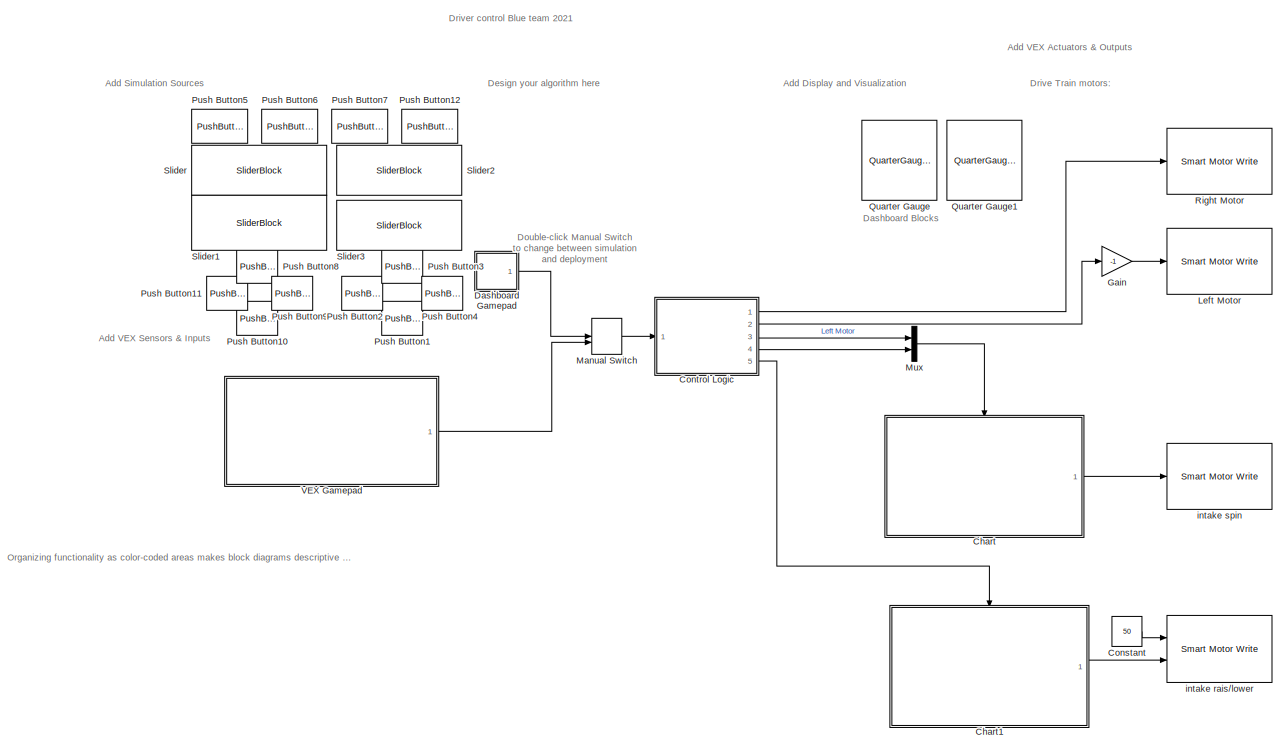
[diagram: root canvas - part 1/2, most of the canvas]
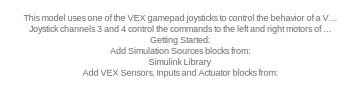
[diagram: root canvas - part 2/2, top left region]
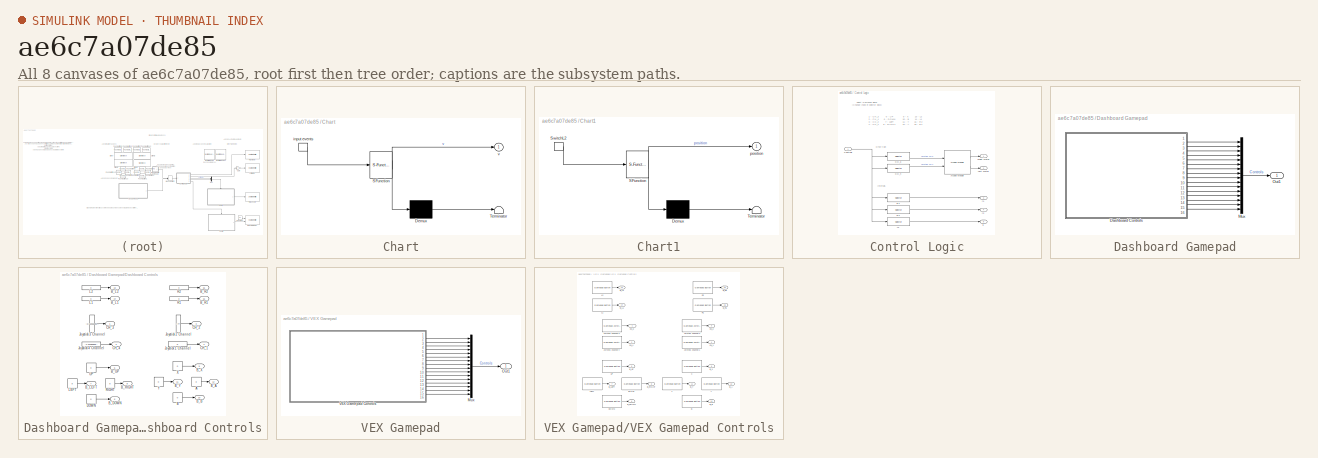
[diagram: thumbnail index - all 8 canvases of the model, root first then tree order]
MODEL slx_ae6c7a07de85
KIND model
CONFIG AbsTol = auto
CONFIG EnableMultiTasking = on
CONFIG FixedStep = auto
CONFIG MaxStep = auto
CONFIG MinStep = auto
CONFIG RelTol = 1e-3
CONFIG SampleTimeConstraint = Unconstrained
CONFIG SolverName = ode3
CONFIG StartTime = 0.0
CONFIG StopTime = inf
BLOCK [SubSystem] Chart
  ErrorFcn = Stateflow.Translate.translate
  PermitHierarchicalResolution = ExplicitOnly
  Ports = [0, 1, 0, 1]
  RequestExecContextInheritance = off
  SFBlockType = Chart
  TreatAsAtomicUnit = on
BLOCK [Demux] Chart/ Demux 
  Outputs = 1
  Ports = [1, 1]
BLOCK [S-Function] Chart/ SFunction 
  EnableBusSupport = on
  FunctionName = sf_sfun
  PortCounts = [1 2]
  Ports = [1, 2]
  SFcnIsStateOwnerBlock = off
  SFunctionDeploymentMode = off
  Tag = Stateflow S-Function 3
BLOCK [Terminator] Chart/ Terminator 
BLOCK [TriggerPort] Chart/input events
  Ports = [0, 1]
  ShowOutputPort = on
  StatesWhenEnabling = held
  VariantControl = (inherit)
BLOCK [Outport] Chart/v
BLOCK [SubSystem] Chart1
  ErrorFcn = Stateflow.Translate.translate
  PermitHierarchicalResolution = ExplicitOnly
  Ports = [0, 1, 0, 1]
  RequestExecContextInheritance = off
  SFBlockType = Chart
  TreatAsAtomicUnit = on
BLOCK [Demux] Chart1/ Demux 
  Outputs = 1
  Ports = [1, 1]
BLOCK [S-Function] Chart1/ SFunction 
  EnableBusSupport = on
  FunctionName = sf_sfun
  PortCounts = [1 2]
  Ports = [1, 2]
  SFcnIsStateOwnerBlock = off
  SFunctionDeploymentMode = off
  Tag = Stateflow S-Function 1
BLOCK [Terminator] Chart1/ Terminator 
BLOCK [TriggerPort] Chart1/SwitchL2
  Ports = [0, 1]
  ShowOutputPort = on
  StatesWhenEnabling = held
  VariantControl = (inherit)
BLOCK [Outport] Chart1/position
BLOCK [Constant] Constant
  Value = 50
BLOCK [SubSystem] Control Logic
  Ports = [1, 5]
  RequestExecContextInheritance = off
BLOCK [Reference] Control Logic/Arcade Module  REF=vexcommonlib/Arcade Module
  Ports = [2, 2]
  SourceBlock = vexcommonlib/Arcade Module
  SourceProductBaseCode = EC_VEX_MICRO,VEXV5
  SourceType = Arcade-2 Motors Module
BLOCK [Selector] Control Logic/CH_3
  IndexOptions = Index vector (dialog)
  Indices = 1
  InputPortWidth = 16
  OutputSizes = 1
  Ports = [1, 1]
BLOCK [Selector] Control Logic/CH_4
  IndexOptions = Index vector (dialog)
  Indices = 2
  InputPortWidth = 16
  OutputSizes = 1
  Ports = [1, 1]
BLOCK [Inport] Control Logic/Controls
BLOCK [Selector] Control Logic/L1
  IndexOptions = Index vector (dialog)
  Indices = 14
  InputPortWidth = 16
  OutputSizes = 1
  Ports = [1, 1]
BLOCK [Outport] Control Logic/Left Motor
  Port = 2
  VectorParamsAs1DForOutWhenUnconnected = off
BLOCK [Selector] Control Logic/R1
  IndexOptions = Index vector (dialog)
  Indices = 16
  InputPortWidth = 16
  OutputSizes = 1
  Ports = [1, 1]
BLOCK [Selector] Control Logic/R2
  IndexOptions = Index vector (dialog)
  Indices = 15
  InputPortWidth = 16
  OutputSizes = 1
  Ports = [1, 1]
BLOCK [Outport] Control Logic/Right Motor
  VectorParamsAs1DForOutWhenUnconnected = off
BLOCK [Outport] Control Logic/l1
  Port = 5
  VectorParamsAs1DForOutWhenUnconnected = off
BLOCK [Outport] Control Logic/r1
  Port = 3
  VectorParamsAs1DForOutWhenUnconnected = off
BLOCK [Outport] Control Logic/r2
  Port = 4
  VectorParamsAs1DForOutWhenUnconnected = off
BLOCK [SubSystem] Dashboard Gamepad
  Ports = [0, 1]
  RequestExecContextInheritance = off
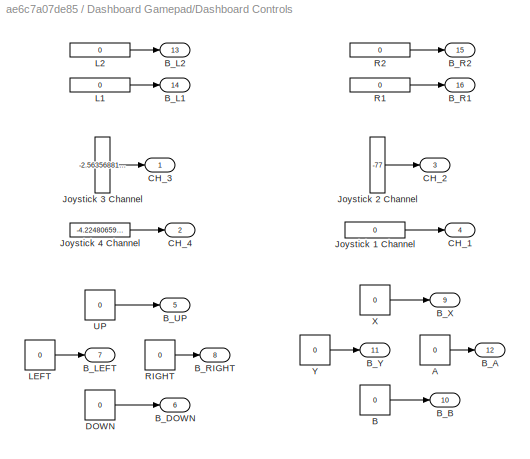
BLOCK [SubSystem] Dashboard Gamepad/Dashboard Controls
  Ports = [0, 16]
  RequestExecContextInheritance = off
BLOCK [Constant] Dashboard Gamepad/Dashboard Controls/A
  Value = 0
BLOCK [Constant] Dashboard Gamepad/Dashboard Controls/B
  Value = 0
BLOCK [Outport] Dashboard Gamepad/Dashboard Controls/B_A
  Port = 12
  VectorParamsAs1DForOutWhenUnconnected = off
BLOCK [Outport] Dashboard Gamepad/Dashboard Controls/B_B
  Port = 10
  VectorParamsAs1DForOutWhenUnconnected = off
BLOCK [Outport] Dashboard Gamepad/Dashboard Controls/B_DOWN
  Port = 6
  VectorParamsAs1DForOutWhenUnconnected = off
BLOCK [Outport] Dashboard Gamepad/Dashboard Controls/B_L1
  Port = 14
  VectorParamsAs1DForOutWhenUnconnected = off
BLOCK [Outport] Dashboard Gamepad/Dashboard Controls/B_L2
  Port = 13
  VectorParamsAs1DForOutWhenUnconnected = off
BLOCK [Outport] Dashboard Gamepad/Dashboard Controls/B_LEFT
  Port = 7
  VectorParamsAs1DForOutWhenUnconnected = off
BLOCK [Outport] Dashboard Gamepad/Dashboard Controls/B_R1
  Port = 16
  VectorParamsAs1DForOutWhenUnconnected = off
BLOCK [Outport] Dashboard Gamepad/Dashboard Controls/B_R2
  Port = 15
  VectorParamsAs1DForOutWhenUnconnected = off
BLOCK [Outport] Dashboard Gamepad/Dashboard Controls/B_RIGHT
  Port = 8
  VectorParamsAs1DForOutWhenUnconnected = off
BLOCK [Outport] Dashboard Gamepad/Dashboard Controls/B_UP
  Port = 5
  VectorParamsAs1DForOutWhenUnconnected = off
BLOCK [Outport] Dashboard Gamepad/Dashboard Controls/B_X
  Port = 9
  VectorParamsAs1DForOutWhenUnconnected = off
BLOCK [Outport] Dashboard Gamepad/Dashboard Controls/B_Y
  Port = 11
  VectorParamsAs1DForOutWhenUnconnected = off
BLOCK [Outport] Dashboard Gamepad/Dashboard Controls/CH_1
  Port = 4
  VectorParamsAs1DForOutWhenUnconnected = off
BLOCK [Outport] Dashboard Gamepad/Dashboard Controls/CH_2
  Port = 3
  VectorParamsAs1DForOutWhenUnconnected = off
BLOCK [Outport] Dashboard Gamepad/Dashboard Controls/CH_3
  VectorParamsAs1DForOutWhenUnconnected = off
BLOCK [Outport] Dashboard Gamepad/Dashboard Controls/CH_4
  Port = 2
  VectorParamsAs1DForOutWhenUnconnected = off
BLOCK [Constant] Dashboard Gamepad/Dashboard Controls/DOWN
  Value = 0
BLOCK [Constant] Dashboard Gamepad/Dashboard Controls/Joystick 1 Channel
  Value = 0
BLOCK [Constant] Dashboard Gamepad/Dashboard Controls/Joystick 2 Channel
  Value = -77
BLOCK [Constant] Dashboard Gamepad/Dashboard Controls/Joystick 3 Channel
  Value = -2.56356881107493
BLOCK [Constant] Dashboard Gamepad/Dashboard Controls/Joystick 4 Channel
  Value = -4.224806596091213
BLOCK [Constant] Dashboard Gamepad/Dashboard Controls/L1
  Value = 0
BLOCK [Constant] Dashboard Gamepad/Dashboard Controls/L2
  Value = 0
BLOCK [Constant] Dashboard Gamepad/Dashboard Controls/LEFT
  Value = 0
BLOCK [Constant] Dashboard Gamepad/Dashboard Controls/R1
  Value = 0
BLOCK [Constant] Dashboard Gamepad/Dashboard Controls/R2
  Value = 0
BLOCK [Constant] Dashboard Gamepad/Dashboard Controls/RIGHT
  Value = 0
BLOCK [Constant] Dashboard Gamepad/Dashboard Controls/UP
  Value = 0
BLOCK [Constant] Dashboard Gamepad/Dashboard Controls/X
  Value = 0
BLOCK [Constant] Dashboard Gamepad/Dashboard Controls/Y
  Value = 0
BLOCK [Mux] Dashboard Gamepad/Mux
  DisplayOption = bar
  Inputs = 16
  Ports = [16, 1]
BLOCK [Outport] Dashboard Gamepad/Out1
  VectorParamsAs1DForOutWhenUnconnected = off
BLOCK [Gain] Gain
  Gain = -1
BLOCK [Reference] Left Motor  REF=vexv5lib/Actuators/Smart Motor Write
  Ports = [1]
  SourceBlock = vexv5lib/Actuators/Smart Motor Write
  SourceProductBaseCode = VEXV5
  SourceType = vexv5.SmartMotorWrite
BLOCK [ManualSwitch] Manual Switch
  CurrentSetting = 0
BLOCK [Mux] Mux
  DisplayOption = bar
  Inputs = 2
  Ports = [2, 1]
BLOCK [PushButtonBlock] Push Button1
  ButtonText = B
BLOCK [PushButtonBlock] Push Button10
  ButtonText = v
BLOCK [PushButtonBlock] Push Button11
  ButtonText = <
BLOCK [PushButtonBlock] Push Button12
  ButtonText = R2
BLOCK [PushButtonBlock] Push Button2
  ButtonText = Y
BLOCK [PushButtonBlock] Push Button3
  ButtonText = X
BLOCK [PushButtonBlock] Push Button4
  ButtonText = A
BLOCK [PushButtonBlock] Push Button5
  ButtonText = L1
BLOCK [PushButtonBlock] Push Button6
  ButtonText = L2
BLOCK [PushButtonBlock] Push Button7
  ButtonText = R1
BLOCK [PushButtonBlock] Push Button8
  ButtonText = ^
BLOCK [PushButtonBlock] Push Button9
  ButtonText = >
BLOCK [QuarterGaugeBlock] Quarter Gauge
  ScaleMax = 127
  ScaleMin = -128
BLOCK [QuarterGaugeBlock] Quarter Gauge1
  ScaleMax = 127
  ScaleMin = -128
BLOCK [Reference] Right Motor  REF=vexv5lib/Actuators/Smart Motor Write
  Ports = [1]
  SourceBlock = vexv5lib/Actuators/Smart Motor Write
  SourceProductBaseCode = VEXV5
  SourceType = vexv5.SmartMotorWrite
BLOCK [SliderBlock] Slider
  ScaleMax = 127
  ScaleMin = -128
BLOCK [SliderBlock] Slider1
  ScaleMax = 127
  ScaleMin = -128
BLOCK [SliderBlock] Slider2
  ScaleMax = 127
  ScaleMin = -128
BLOCK [SliderBlock] Slider3
  ScaleMax = 127
  ScaleMin = -128
BLOCK [SubSystem] VEX Gamepad
  Ports = [0, 1]
  RequestExecContextInheritance = off
BLOCK [Mux] VEX Gamepad/Mux
  DisplayOption = bar
  Inputs = 16
  Ports = [16, 1]
BLOCK [Outport] VEX Gamepad/Out1
  VectorParamsAs1DForOutWhenUnconnected = off
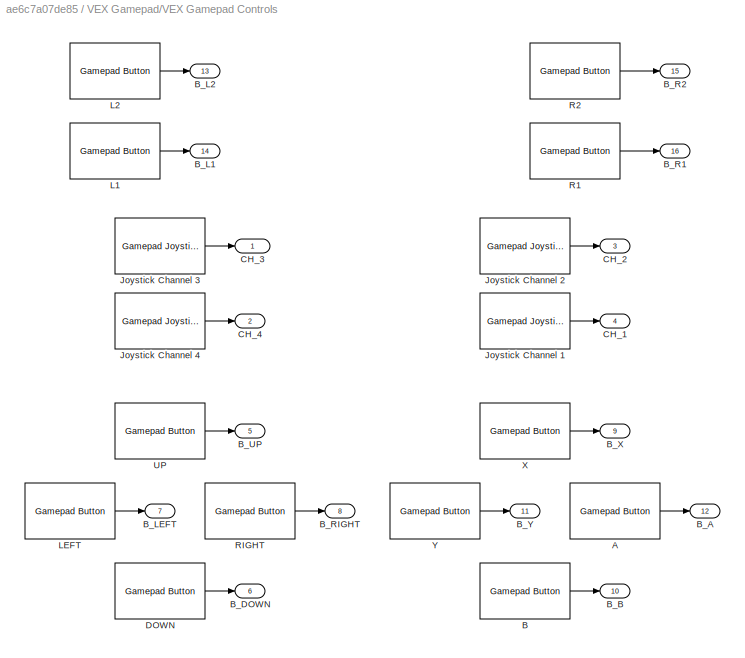
BLOCK [SubSystem] VEX Gamepad/VEX Gamepad Controls
  Ports = [0, 16]
  RequestExecContextInheritance = off
BLOCK [Reference] VEX Gamepad/VEX Gamepad Controls/A  REF=vexv5lib/Gamepad/Gamepad Button
  Ports = [0, 1]
  SourceBlock = vexv5lib/Gamepad/Gamepad Button
  SourceProductBaseCode = VEXV5
  SourceType = Gamepad Button
BLOCK [Reference] VEX Gamepad/VEX Gamepad Controls/B  REF=vexv5lib/Gamepad/Gamepad Button
  Ports = [0, 1]
  SourceBlock = vexv5lib/Gamepad/Gamepad Button
  SourceProductBaseCode = VEXV5
  SourceType = Gamepad Button
BLOCK [Outport] VEX Gamepad/VEX Gamepad Controls/B_A
  Port = 12
  VectorParamsAs1DForOutWhenUnconnected = off
BLOCK [Outport] VEX Gamepad/VEX Gamepad Controls/B_B
  Port = 10
  VectorParamsAs1DForOutWhenUnconnected = off
BLOCK [Outport] VEX Gamepad/VEX Gamepad Controls/B_DOWN
  Port = 6
  VectorParamsAs1DForOutWhenUnconnected = off
BLOCK [Outport] VEX Gamepad/VEX Gamepad Controls/B_L1
  Port = 14
  VectorParamsAs1DForOutWhenUnconnected = off
BLOCK [Outport] VEX Gamepad/VEX Gamepad Controls/B_L2
  Port = 13
  VectorParamsAs1DForOutWhenUnconnected = off
BLOCK [Outport] VEX Gamepad/VEX Gamepad Controls/B_LEFT
  Port = 7
  VectorParamsAs1DForOutWhenUnconnected = off
BLOCK [Outport] VEX Gamepad/VEX Gamepad Controls/B_R1
  Port = 16
  VectorParamsAs1DForOutWhenUnconnected = off
BLOCK [Outport] VEX Gamepad/VEX Gamepad Controls/B_R2
  Port = 15
  VectorParamsAs1DForOutWhenUnconnected = off
BLOCK [Outport] VEX Gamepad/VEX Gamepad Controls/B_RIGHT
  Port = 8
  VectorParamsAs1DForOutWhenUnconnected = off
BLOCK [Outport] VEX Gamepad/VEX Gamepad Controls/B_UP
  Port = 5
  VectorParamsAs1DForOutWhenUnconnected = off
BLOCK [Outport] VEX Gamepad/VEX Gamepad Controls/B_X
  Port = 9
  VectorParamsAs1DForOutWhenUnconnected = off
BLOCK [Outport] VEX Gamepad/VEX Gamepad Controls/B_Y
  Port = 11
  VectorParamsAs1DForOutWhenUnconnected = off
BLOCK [Outport] VEX Gamepad/VEX Gamepad Controls/CH_1
  Port = 4
  VectorParamsAs1DForOutWhenUnconnected = off
BLOCK [Outport] VEX Gamepad/VEX Gamepad Controls/CH_2
  Port = 3
  VectorParamsAs1DForOutWhenUnconnected = off
BLOCK [Outport] VEX Gamepad/VEX Gamepad Controls/CH_3
  VectorParamsAs1DForOutWhenUnconnected = off
BLOCK [Outport] VEX Gamepad/VEX Gamepad Controls/CH_4
  Port = 2
  VectorParamsAs1DForOutWhenUnconnected = off
BLOCK [Reference] VEX Gamepad/VEX Gamepad Controls/DOWN  REF=vexv5lib/Gamepad/Gamepad Button
  Ports = [0, 1]
  SourceBlock = vexv5lib/Gamepad/Gamepad Button
  SourceProductBaseCode = VEXV5
  SourceType = Gamepad Button
BLOCK [Reference] VEX Gamepad/VEX Gamepad Controls/Joystick  Channel 2  REF=vexv5lib/Gamepad/Gamepad Joystick
  Ports = [0, 1]
  SourceBlock = vexv5lib/Gamepad/Gamepad Joystick
  SourceProductBaseCode = VEXV5
  SourceType = Gamepad Joystick
BLOCK [Reference] VEX Gamepad/VEX Gamepad Controls/Joystick  Channel 4  REF=vexv5lib/Gamepad/Gamepad Joystick
  Ports = [0, 1]
  SourceBlock = vexv5lib/Gamepad/Gamepad Joystick
  SourceProductBaseCode = VEXV5
  SourceType = Gamepad Joystick
BLOCK [Reference] VEX Gamepad/VEX Gamepad Controls/Joystick Channel 1  REF=vexv5lib/Gamepad/Gamepad Joystick
  Ports = [0, 1]
  SourceBlock = vexv5lib/Gamepad/Gamepad Joystick
  SourceProductBaseCode = VEXV5
  SourceType = Gamepad Joystick
BLOCK [Reference] VEX Gamepad/VEX Gamepad Controls/Joystick Channel 3  REF=vexv5lib/Gamepad/Gamepad Joystick
  Ports = [0, 1]
  SourceBlock = vexv5lib/Gamepad/Gamepad Joystick
  SourceProductBaseCode = VEXV5
  SourceType = Gamepad Joystick
BLOCK [Reference] VEX Gamepad/VEX Gamepad Controls/L1  REF=vexv5lib/Gamepad/Gamepad Button
  Ports = [0, 1]
  SourceBlock = vexv5lib/Gamepad/Gamepad Button
  SourceProductBaseCode = VEXV5
  SourceType = Gamepad Button
BLOCK [Reference] VEX Gamepad/VEX Gamepad Controls/L2  REF=vexv5lib/Gamepad/Gamepad Button
  Ports = [0, 1]
  SourceBlock = vexv5lib/Gamepad/Gamepad Button
  SourceProductBaseCode = VEXV5
  SourceType = Gamepad Button
BLOCK [Reference] VEX Gamepad/VEX Gamepad Controls/LEFT  REF=vexv5lib/Gamepad/Gamepad Button
  Ports = [0, 1]
  SourceBlock = vexv5lib/Gamepad/Gamepad Button
  SourceProductBaseCode = VEXV5
  SourceType = Gamepad Button
BLOCK [Reference] VEX Gamepad/VEX Gamepad Controls/R1  REF=vexv5lib/Gamepad/Gamepad Button
  Ports = [0, 1]
  SourceBlock = vexv5lib/Gamepad/Gamepad Button
  SourceProductBaseCode = VEXV5
  SourceType = Gamepad Button
BLOCK [Reference] VEX Gamepad/VEX Gamepad Controls/R2  REF=vexv5lib/Gamepad/Gamepad Button
  Ports = [0, 1]
  SourceBlock = vexv5lib/Gamepad/Gamepad Button
  SourceProductBaseCode = VEXV5
  SourceType = Gamepad Button
BLOCK [Reference] VEX Gamepad/VEX Gamepad Controls/RIGHT  REF=vexv5lib/Gamepad/Gamepad Button
  Ports = [0, 1]
  SourceBlock = vexv5lib/Gamepad/Gamepad Button
  SourceProductBaseCode = VEXV5
  SourceType = Gamepad Button
BLOCK [Reference] VEX Gamepad/VEX Gamepad Controls/UP  REF=vexv5lib/Gamepad/Gamepad Button
  Ports = [0, 1]
  SourceBlock = vexv5lib/Gamepad/Gamepad Button
  SourceProductBaseCode = VEXV5
  SourceType = Gamepad Button
BLOCK [Reference] VEX Gamepad/VEX Gamepad Controls/X  REF=vexv5lib/Gamepad/Gamepad Button
  Ports = [0, 1]
  SourceBlock = vexv5lib/Gamepad/Gamepad Button
  SourceProductBaseCode = VEXV5
  SourceType = Gamepad Button
BLOCK [Reference] VEX Gamepad/VEX Gamepad Controls/Y  REF=vexv5lib/Gamepad/Gamepad Button
  Ports = [0, 1]
  SourceBlock = vexv5lib/Gamepad/Gamepad Button
  SourceProductBaseCode = VEXV5
  SourceType = Gamepad Button
BLOCK [Reference] intake rais//lower  REF=vexv5lib/Actuators/Smart Motor Write
  Ports = [2]
  SourceBlock = vexv5lib/Actuators/Smart Motor Write
  SourceProductBaseCode = VEXV5
  SourceType = vexv5.SmartMotorWrite
BLOCK [Reference] intake spin  REF=vexv5lib/Actuators/Smart Motor Write
  Ports = [1]
  SourceBlock = vexv5lib/Actuators/Smart Motor Write
  SourceProductBaseCode = VEXV5
  SourceType = vexv5.SmartMotorWrite
ANNOTATION (root): This model uses one of the VEX gamepad joysticks to control the behavior of a VEX robot. Joystick channels 3 and 4 control the commands to the left and right motors of a differential robot using an arcade configuration. Getting Started: Add Simulation Sources blocks from: Simulink Library Add VEX Sensors, Inputs and Actuator blocks from: VEX Library Configure VEX Hardware: Open Model Configuration...<+387ch>
ANNOTATION (root): Double-click Manual Switch to change between simulation and deployment
ANNOTATION (root): Organizing functionality as color-coded areas makes block diagrams descriptive and helps to develop increasingly complex algorithms.
ANNOTATION (root): Dashboard Blocks
ANNOTATION (root): Add Display and Visualization
ANNOTATION (root): Add Simulation Sources
ANNOTATION (root): Add VEX Actuators & Outputs
ANNOTATION (root): Add VEX Sensors & Inputs
ANNOTATION (root): Design your algorithm here
ANNOTATION (root): Drive Train motors:
ANNOTATION (root): Driver control Blue team 2021
ANNOTATION Control Logic: 1 - CH_3 2 - CH_4 3 - CH_2 4 - CH_1
ANNOTATION Control Logic: 13 - L2 14 - L1 15 - R2 16 - R1
ANNOTATION Control Logic: 5 - UP 6 - DOWN 7 - LEFT 8 - RIGHT
ANNOTATION Control Logic: 9 - X 10 - B 11 - Y 12 - A
ANNOTATION Control Logic: Drive train
ANNOTATION Control Logic: Internals
ANNOTATION Control Logic: Select Gamepad Signal (Change Index in selector block)
LINE Chart1:1 -> intake rais//lower:2
LINE Chart:1 -> intake spin:1
LINE Constant:1 -> intake rais//lower:1
LINE Control Logic/Arcade Module:1 -> Control Logic/Right Motor:1
LINE Control Logic/Arcade Module:2 -> Control Logic/Left Motor:1
LINE Control Logic/CH_3:1 -> Control Logic/Arcade Module:1
LINE Control Logic/CH_4:1 -> Control Logic/Arcade Module:2
NET Control Logic/Controls:1 -> Control Logic/CH_3:1, Control Logic/CH_4:1, Control Logic/L1:1, Control Logic/R1:1, Control Logic/R2:1
LINE Control Logic/L1:1 -> Control Logic/l1:1
LINE Control Logic/R1:1 -> Control Logic/r1:1
LINE Control Logic/R2:1 -> Control Logic/r2:1
LINE Control Logic:1 -> Right Motor:1
LINE Control Logic:2 -> Gain:1
LINE Control Logic:3 -> Mux:1
LINE Control Logic:4 -> Mux:2
LINE Control Logic:5 -> Chart1:trigger
LINE Dashboard Gamepad/Dashboard Controls/A:1 -> Dashboard Gamepad/Dashboard Controls/B_A:1
LINE Dashboard Gamepad/Dashboard Controls/B:1 -> Dashboard Gamepad/Dashboard Controls/B_B:1
LINE Dashboard Gamepad/Dashboard Controls/DOWN:1 -> Dashboard Gamepad/Dashboard Controls/B_DOWN:1
LINE Dashboard Gamepad/Dashboard Controls/Joystick 1 Channel:1 -> Dashboard Gamepad/Dashboard Controls/CH_1:1
LINE Dashboard Gamepad/Dashboard Controls/Joystick 2 Channel:1 -> Dashboard Gamepad/Dashboard Controls/CH_2:1
LINE Dashboard Gamepad/Dashboard Controls/Joystick 3 Channel:1 -> Dashboard Gamepad/Dashboard Controls/CH_3:1
LINE Dashboard Gamepad/Dashboard Controls/Joystick 4 Channel:1 -> Dashboard Gamepad/Dashboard Controls/CH_4:1
LINE Dashboard Gamepad/Dashboard Controls/L1:1 -> Dashboard Gamepad/Dashboard Controls/B_L1:1
LINE Dashboard Gamepad/Dashboard Controls/L2:1 -> Dashboard Gamepad/Dashboard Controls/B_L2:1
LINE Dashboard Gamepad/Dashboard Controls/LEFT:1 -> Dashboard Gamepad/Dashboard Controls/B_LEFT:1
LINE Dashboard Gamepad/Dashboard Controls/R1:1 -> Dashboard Gamepad/Dashboard Controls/B_R1:1
LINE Dashboard Gamepad/Dashboard Controls/R2:1 -> Dashboard Gamepad/Dashboard Controls/B_R2:1
LINE Dashboard Gamepad/Dashboard Controls/RIGHT:1 -> Dashboard Gamepad/Dashboard Controls/B_RIGHT:1
LINE Dashboard Gamepad/Dashboard Controls/UP:1 -> Dashboard Gamepad/Dashboard Controls/B_UP:1
LINE Dashboard Gamepad/Dashboard Controls/X:1 -> Dashboard Gamepad/Dashboard Controls/B_X:1
LINE Dashboard Gamepad/Dashboard Controls/Y:1 -> Dashboard Gamepad/Dashboard Controls/B_Y:1
LINE Dashboard Gamepad/Dashboard Controls:1 -> Dashboard Gamepad/Mux:1
LINE Dashboard Gamepad/Dashboard Controls:10 -> Dashboard Gamepad/Mux:10
LINE Dashboard Gamepad/Dashboard Controls:11 -> Dashboard Gamepad/Mux:11
LINE Dashboard Gamepad/Dashboard Controls:12 -> Dashboard Gamepad/Mux:12
LINE Dashboard Gamepad/Dashboard Controls:13 -> Dashboard Gamepad/Mux:13
LINE Dashboard Gamepad/Dashboard Controls:14 -> Dashboard Gamepad/Mux:14
LINE Dashboard Gamepad/Dashboard Controls:15 -> Dashboard Gamepad/Mux:15
LINE Dashboard Gamepad/Dashboard Controls:16 -> Dashboard Gamepad/Mux:16
LINE Dashboard Gamepad/Dashboard Controls:2 -> Dashboard Gamepad/Mux:2
LINE Dashboard Gamepad/Dashboard Controls:3 -> Dashboard Gamepad/Mux:3
LINE Dashboard Gamepad/Dashboard Controls:4 -> Dashboard Gamepad/Mux:4
LINE Dashboard Gamepad/Dashboard Controls:5 -> Dashboard Gamepad/Mux:5
LINE Dashboard Gamepad/Dashboard Controls:6 -> Dashboard Gamepad/Mux:6
LINE Dashboard Gamepad/Dashboard Controls:7 -> Dashboard Gamepad/Mux:7
LINE Dashboard Gamepad/Dashboard Controls:8 -> Dashboard Gamepad/Mux:8
LINE Dashboard Gamepad/Dashboard Controls:9 -> Dashboard Gamepad/Mux:9
LINE Dashboard Gamepad/Mux:1 -> Dashboard Gamepad/Out1:1
LINE Dashboard Gamepad:1 -> Manual Switch:1
LINE Gain:1 -> Left Motor:1
LINE Manual Switch:1 -> Control Logic:1
LINE Mux:1 -> Chart:trigger
LINE VEX Gamepad/Mux:1 -> VEX Gamepad/Out1:1
LINE VEX Gamepad/VEX Gamepad Controls/A:1 -> VEX Gamepad/VEX Gamepad Controls/B_A:1
LINE VEX Gamepad/VEX Gamepad Controls/B:1 -> VEX Gamepad/VEX Gamepad Controls/B_B:1
LINE VEX Gamepad/VEX Gamepad Controls/DOWN:1 -> VEX Gamepad/VEX Gamepad Controls/B_DOWN:1
LINE VEX Gamepad/VEX Gamepad Controls/Joystick  Channel 2:1 -> VEX Gamepad/VEX Gamepad Controls/CH_2:1
LINE VEX Gamepad/VEX Gamepad Controls/Joystick  Channel 4:1 -> VEX Gamepad/VEX Gamepad Controls/CH_4:1
LINE VEX Gamepad/VEX Gamepad Controls/Joystick Channel 1:1 -> VEX Gamepad/VEX Gamepad Controls/CH_1:1
LINE VEX Gamepad/VEX Gamepad Controls/Joystick Channel 3:1 -> VEX Gamepad/VEX Gamepad Controls/CH_3:1
LINE VEX Gamepad/VEX Gamepad Controls/L1:1 -> VEX Gamepad/VEX Gamepad Controls/B_L1:1
LINE VEX Gamepad/VEX Gamepad Controls/L2:1 -> VEX Gamepad/VEX Gamepad Controls/B_L2:1
LINE VEX Gamepad/VEX Gamepad Controls/LEFT:1 -> VEX Gamepad/VEX Gamepad Controls/B_LEFT:1
LINE VEX Gamepad/VEX Gamepad Controls/R1:1 -> VEX Gamepad/VEX Gamepad Controls/B_R1:1
LINE VEX Gamepad/VEX Gamepad Controls/R2:1 -> VEX Gamepad/VEX Gamepad Controls/B_R2:1
LINE VEX Gamepad/VEX Gamepad Controls/RIGHT:1 -> VEX Gamepad/VEX Gamepad Controls/B_RIGHT:1
LINE VEX Gamepad/VEX Gamepad Controls/UP:1 -> VEX Gamepad/VEX Gamepad Controls/B_UP:1
LINE VEX Gamepad/VEX Gamepad Controls/X:1 -> VEX Gamepad/VEX Gamepad Controls/B_X:1
LINE VEX Gamepad/VEX Gamepad Controls/Y:1 -> VEX Gamepad/VEX Gamepad Controls/B_Y:1
LINE VEX Gamepad/VEX Gamepad Controls:1 -> VEX Gamepad/Mux:1
LINE VEX Gamepad/VEX Gamepad Controls:10 -> VEX Gamepad/Mux:10
LINE VEX Gamepad/VEX Gamepad Controls:11 -> VEX Gamepad/Mux:11
LINE VEX Gamepad/VEX Gamepad Controls:12 -> VEX Gamepad/Mux:12
LINE VEX Gamepad/VEX Gamepad Controls:13 -> VEX Gamepad/Mux:13
LINE VEX Gamepad/VEX Gamepad Controls:14 -> VEX Gamepad/Mux:14
LINE VEX Gamepad/VEX Gamepad Controls:15 -> VEX Gamepad/Mux:15
LINE VEX Gamepad/VEX Gamepad Controls:16 -> VEX Gamepad/Mux:16
LINE VEX Gamepad/VEX Gamepad Controls:2 -> VEX Gamepad/Mux:2
LINE VEX Gamepad/VEX Gamepad Controls:3 -> VEX Gamepad/Mux:3
LINE VEX Gamepad/VEX Gamepad Controls:4 -> VEX Gamepad/Mux:4
LINE VEX Gamepad/VEX Gamepad Controls:5 -> VEX Gamepad/Mux:5
LINE VEX Gamepad/VEX Gamepad Controls:6 -> VEX Gamepad/Mux:6
LINE VEX Gamepad/VEX Gamepad Controls:7 -> VEX Gamepad/Mux:7
LINE VEX Gamepad/VEX Gamepad Controls:8 -> VEX Gamepad/Mux:8
LINE VEX Gamepad/VEX Gamepad Controls:9 -> VEX Gamepad/Mux:9
LINE VEX Gamepad:1 -> Manual Switch:2
note: NET lines group one-source signal fan-out (src -> all destinations, sorted); 1:1 wires keep LINE
CHART Chart1 states=2 transitions=3
  STATE_LABEL 'down\nentry: position = 0\n'
  STATE_LABEL 'up\nentry: position = 1100\n'
CHART Chart states=4 transitions=7
  STATE_LABEL 'v3 is the velocity for the 3rd motor \nv is the velocity for the rest'
  STATE_LABEL 'stop\nentry: v = 0\n'
  STATE_LABEL 'Out\nentry: v = -127\n'
  STATE_LABEL 'in\nentry: v = 127\n'
CHART  states=0 transitions=0
CHART  states=0 transitions=0
